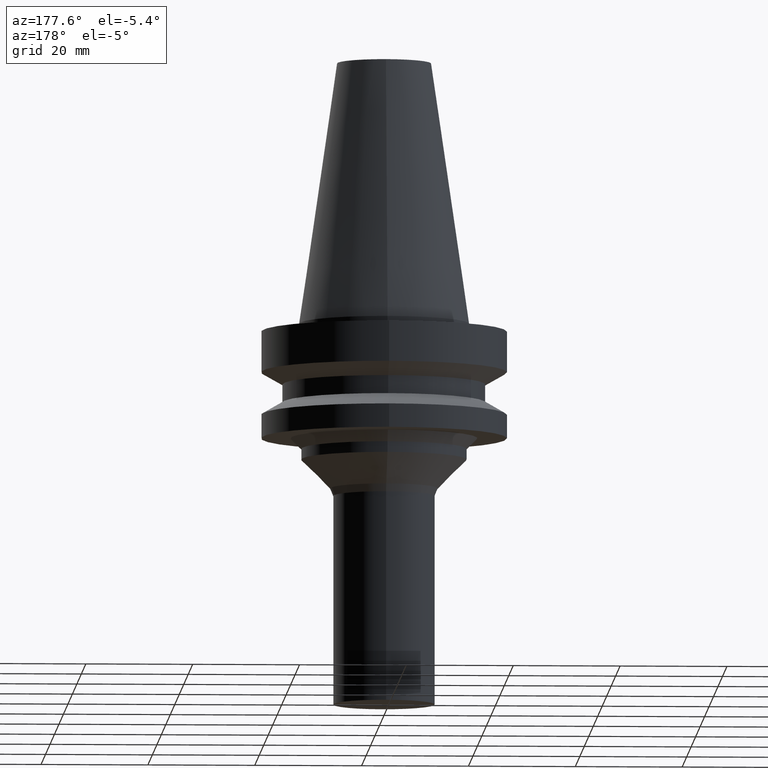
[diagram: clean part render]
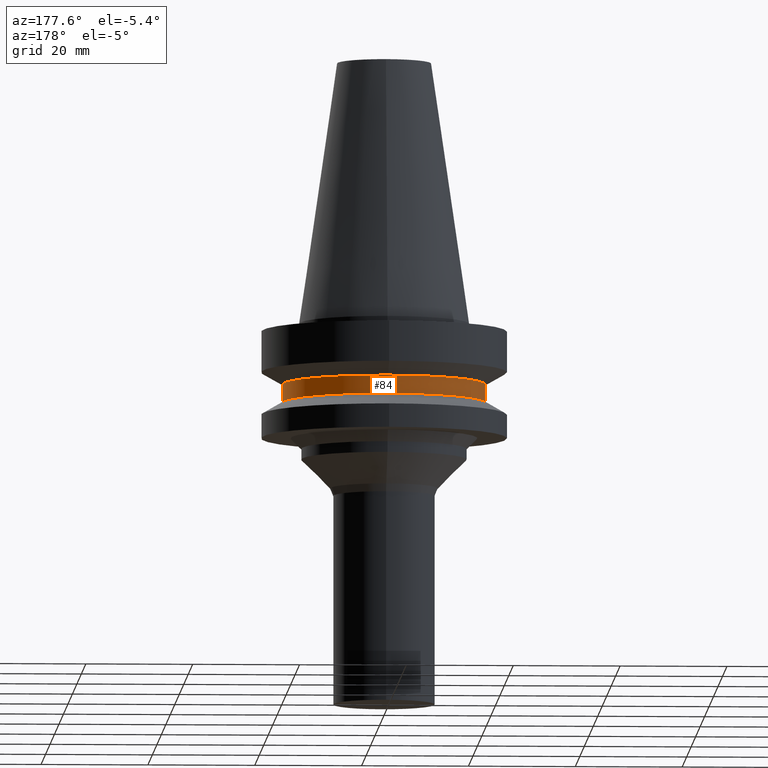
[diagram: same view with one face highlighted and labeled with its STEP entity id]
A machine part, auxiliary view. The second image highlights one B-rep face of the part: STEP entity #84.
In plain terms, the highlighted cylindrical surface (bore or boss wall) has radius 19 mm, axis along (-0, -0, 1).
Its self-contained STEP definition (entity closure, byte-faithful):
#84=ADVANCED_FACE('',(#118,#119),#120,.T.);
#118=FACE_BOUND('',#164,.T.);
#119=FACE_BOUND('',#165,.T.);
#120=CYLINDRICAL_SURFACE('',#166,19.0);
#164=EDGE_LOOP('',(#228));
#165=EDGE_LOOP('',(#229));
#166=AXIS2_PLACEMENT_3D('',#230,#231,#232);
#228=ORIENTED_EDGE('',*,*,#263,.F.);
#229=ORIENTED_EDGE('',*,*,#271,.T.);
#230=CARTESIAN_POINT('',(8.32759823468329E-016,1.66551964693666E-015,-13.600000000786));
#231=DIRECTION('',(-6.12323399573677E-017,-1.22464679914735E-016,1.0));
#232=DIRECTION('',(-1.23259516440783E-032,1.0,1.22464679914735E-016));
#263=EDGE_CURVE('',#279,#279,#280,.T.);
#271=EDGE_CURVE('',#295,#295,#296,.T.);
#279=VERTEX_POINT('',#309);
#280=CIRCLE('',#310,19.0);
#295=VERTEX_POINT('',#325);
#296=CIRCLE('',#326,19.0);
#309=CARTESIAN_POINT('',(9.36279120990808E-016,19.0,-15.2905984263003));
#310=AXIS2_PLACEMENT_3D('',#340,#341,#342);
#325=CARTESIAN_POINT('',(7.29240525945849E-016,19.0,-11.9094015752717));
#326=AXIS2_PLACEMENT_3D('',#364,#365,#366);
#340=CARTESIAN_POINT('',(9.36279120990809E-016,1.87255824198162E-015,-15.2905984263003));
#341=DIRECTION('',(6.12323399573677E-017,1.22464679914735E-016,-1.0));
#342=DIRECTION('',(-1.23259516440783E-032,1.0,1.22464679914735E-016));
#364=CARTESIAN_POINT('',(7.29240525945849E-016,1.4584810518917E-015,-11.9094015752717));
#365=DIRECTION('',(6.12323399573677E-017,1.22464679914735E-016,-1.0));
#366=DIRECTION('',(-1.23259516440783E-032,1.0,1.22464679914735E-016));